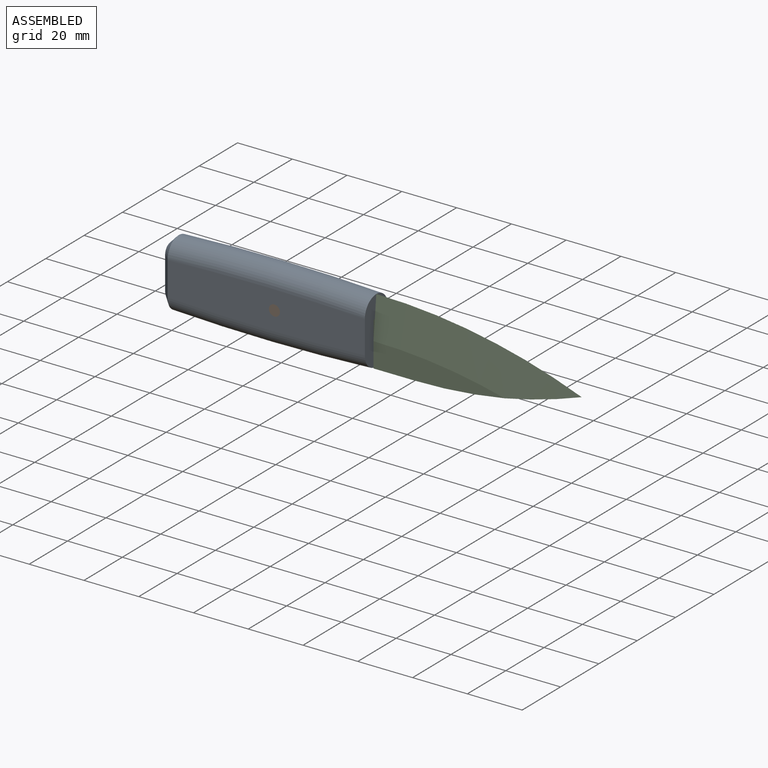
[diagram: assembled view]
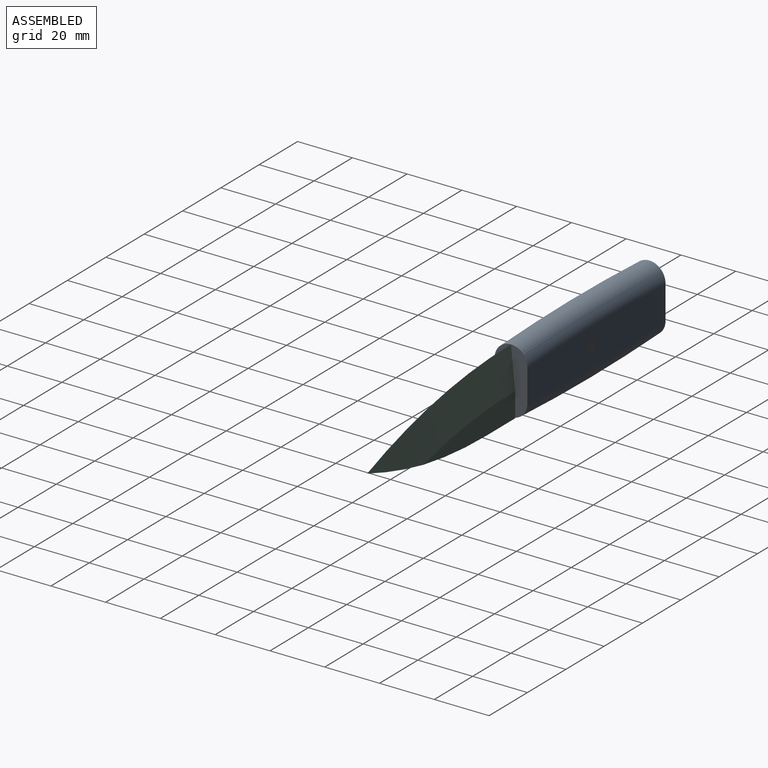
[diagram: assembled view, second angle]
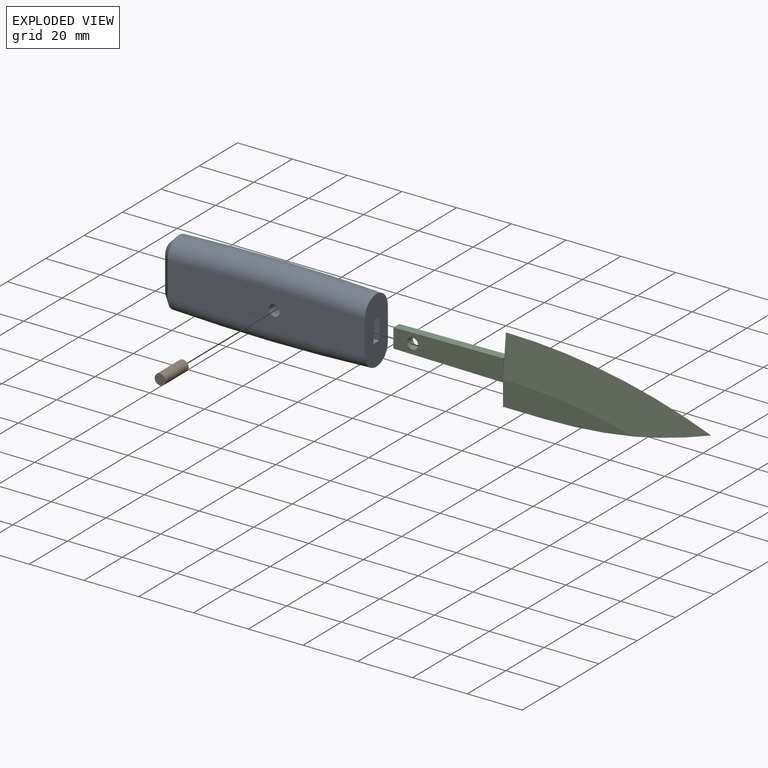
[diagram: exploded view]
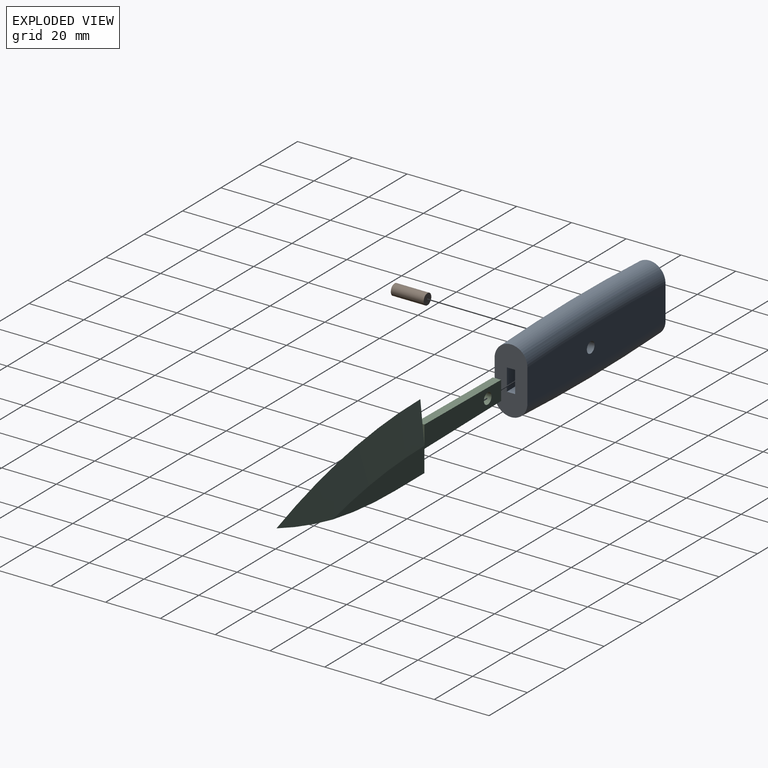
[diagram: exploded view, second angle]
ASSEMBLY  parts=3 mates=2
PART A: 19 faces, bbox 75.5x12.1x28 mm
  f0: plane 24.14x12.14mm, normal (1,0,0), area 233.1mm2, adj f2,f3,f5,f6,f7,f8,f11,f12
  f1: plane 18.31x6.01mm, normal (-1,0,0), area 102mm2, adj f13,f14,f15,f16,f17,f18
  f2: plane 40x8mm, normal (0,-1,0), area 287.4mm2, adj f0,f4,f5,f6,f10
  f3: plane 72x14mm, normal (0,1,0), area 950.6mm2, adj f0,f10,f11,f12,f14
  f4: plane 7x3mm, normal (1,0,0), area 21mm2, adj f2,f5,f6,f7
  f5: plane 40x3mm, normal (0.01,0,-1), area 120mm2, adj f0,f2,f4,f7
  f6: plane 40x3mm, normal (0.01,0,1), area 120mm2, adj f0,f2,f4,f7
  f7: plane 40x8mm, normal (0,1,0), area 287.4mm2, adj f0,f4,f5,f6,f9
  f8: plane 72x14mm, normal (0,-1,0), area 950.6mm2, adj f0,f9,f11,f12,f17
  f9: cylinder r=2mm len=4.5mm, axis (0,-1,0), area 56.5mm2, adj f7,f8
  f10: cylinder r=2mm len=4.5mm, axis (0,-1,0), area 56.5mm2, adj f2,f3
  f11: torus R=697.62mm, axis (0,-1,0), area 1360.8mm2, adj f0,f3,f8,f13,f15
  f12: torus R=697.62mm, axis (0,-1,0), area 1360.8mm2, adj f0,f3,f8,f16,f18
  f13: bspline ~6.01x6.01mm, area 29.5mm2, adj f1,f11,f14,f15
  f14: plane 12.29x3mm, normal (-0.71,0.71,0), area 52.2mm2, adj f1,f3,f13,f16
  f15: bspline ~6.01x6.01mm, area 29.5mm2, adj f1,f11,f13,f17
  f16: bspline ~6.01x6.01mm, area 29.5mm2, adj f1,f12,f14,f18
  f17: plane 12.29x3mm, normal (-0.71,-0.71,0), area 52.2mm2, adj f1,f8,f15,f18
  f18: bspline ~6.01x6.01mm, area 29.5mm2, adj f1,f12,f16,f17
PART B: 3 faces, bbox 4x12x4 mm
  f0: cylinder r=2mm len=12mm, axis (0,1,0), area 150.8mm2, adj f1,f2
  f1: plane 4x4mm, normal (0,-1,0), area 12.6mm2, adj f0
  f2: plane 4x4mm, normal (0,1,0), area 12.6mm2, adj f0
PART C: 14 faces, bbox 115x3x28 mm
  f0: plane 8x3mm, normal (-1,0,0), area 24mm2, adj f2,f4,f5,f11
  f1: plane 8x1.6mm, normal (-1,0,0), area 6.4mm2, adj f6,f7,f9
  f2: plane 15x3mm, normal (0,0,-1), area 45mm2, adj f0,f3,f4,f5
  f3: cylinder r=185mm len=60mm, axis (0,1,0), area 141.3mm2, adj f2,f4,f5,f6,f7
  f4: plane 87.92x16mm, normal (0,-1,0), area 590.4mm2, adj f0,f2,f3,f6,f8,f9,f10,f11
  f5: plane 87.92x16mm, normal (0,1,0), area 590.4mm2, adj f0,f2,f3,f7,f9,f10,f11,f12
  f6: cone r=207.89mm half-angle=84.3deg, axis (0,1,0), area 958.8mm2, adj f1,f3,f4,f7,f8
  f7: cone r=192.89mm half-angle=84.3deg, axis (0,-1,0), area 958.8mm2, adj f1,f3,f5,f6,f12
  f8: plane 7x0.7mm, normal (1,0,0), area 2.4mm2, adj f4,f6,f9
  f9: plane 40x3mm, normal (-0.01,0,1), area 120mm2, adj f1,f4,f5,f8,f10,f12
  f10: plane 7x3mm, normal (-1,0,0), area 21mm2, adj f4,f5,f9,f11
  f11: plane 40x3mm, normal (-0.01,0,-1), area 120mm2, adj f0,f4,f5,f10
  f12: plane 7x0.7mm, normal (1,0,0), area 2.4mm2, adj f5,f7,f9
  f13: cylinder r=2mm len=4mm, axis (0,1,0), area 37.7mm2, adj f4,f5
PLACE A rot(axis=(1,0,0),0deg) t=(68.95,34.25,-20.85)mm fixed
PLACE B rot(axis=(1,0,0),0deg) t=(35.95,34.25,-8.85)mm
PLACE C t=(68.95,29.75,-8.85)mm
MATE slider C.f10 <-> A.f4  axis (-1,0,0) through (28.95,28.25,-8.85)mm
MATE slider B.f0 <-> A.f9  axis (0,-1,0) through (35.95,22.25,-8.85)mm
